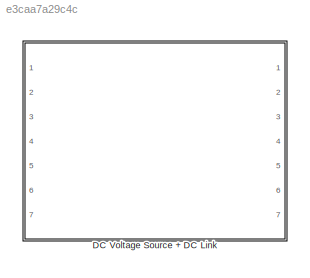
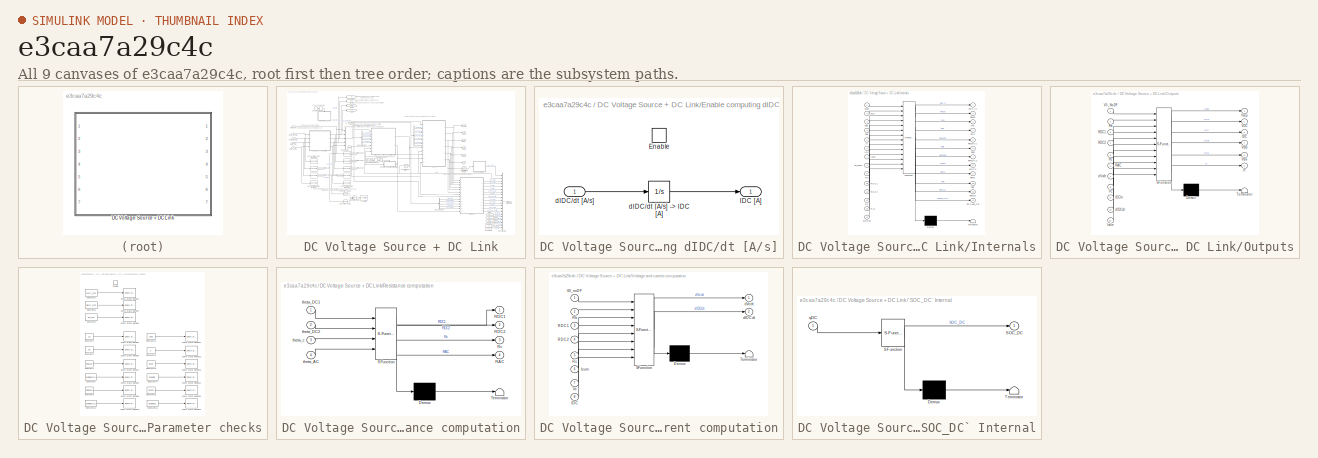
[diagram: thumbnail index - all 9 canvases of the model, root first then tree order]
MODEL slx_e3caa7a29c4c
KIND library
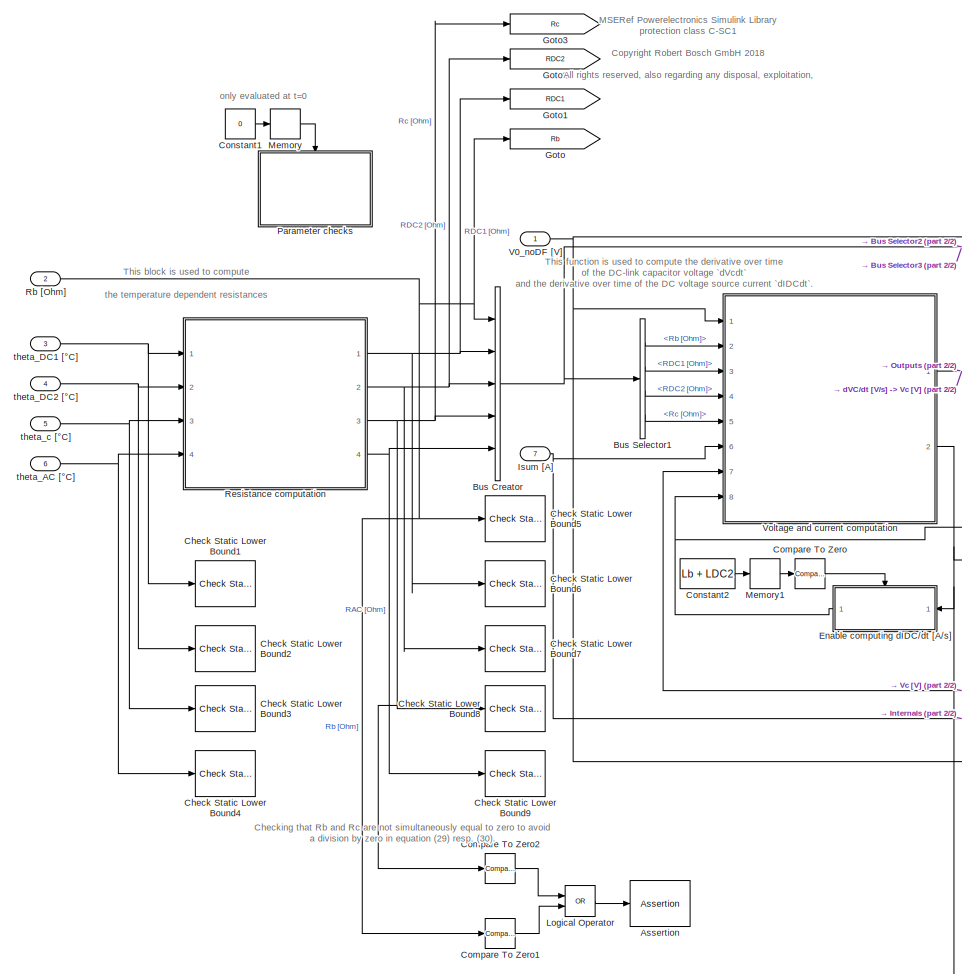
[diagram: DC Voltage Source + DC Link - part 1/2, left side, full height]
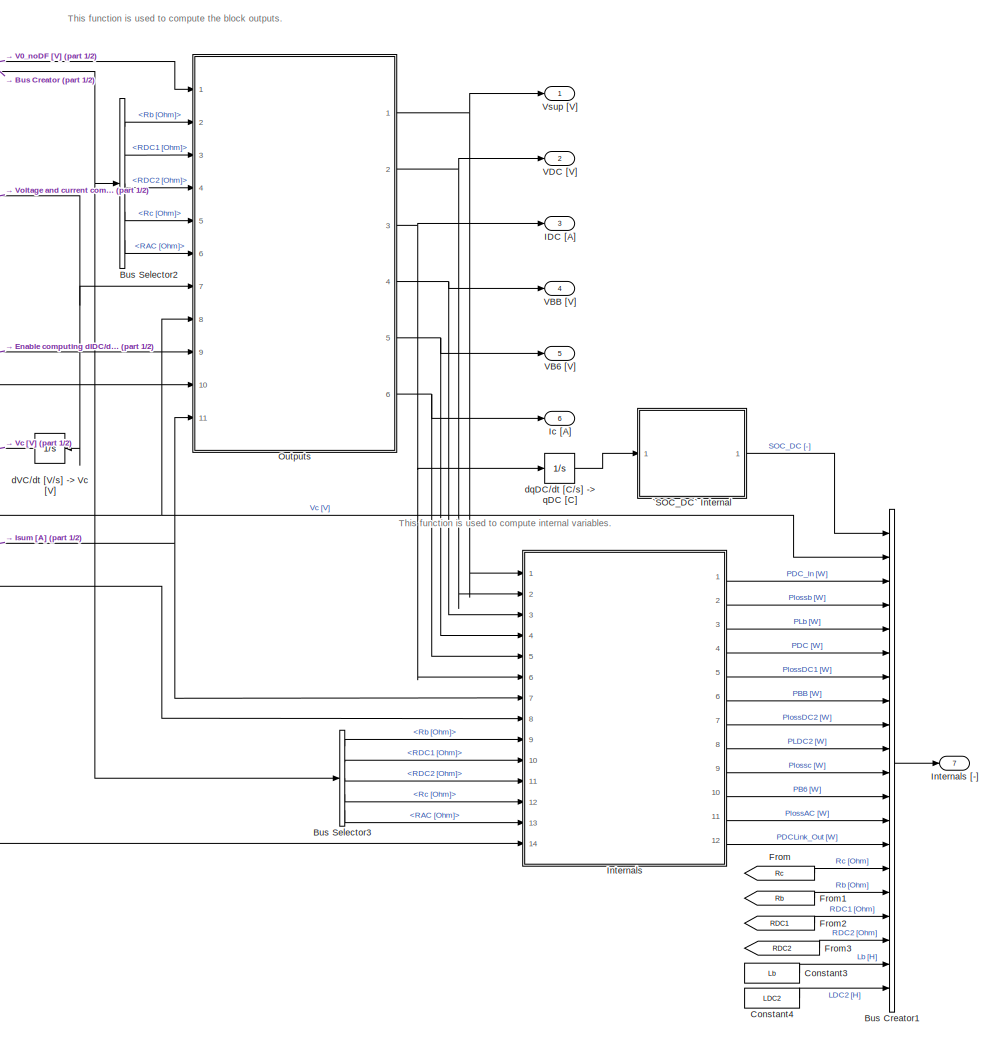
[diagram: DC Voltage Source + DC Link - part 2/2, right side, full height]
BLOCK [SubSystem] DC Voltage Source + DC Link
  AttributesFormatString = <%<Tag>>
  Ports = [7, 7]
  RequestExecContextInheritance = off
  Tag = PESRC01MSEREF
BLOCK [Assertion] DC Voltage Source + DC Link/Assertion
  AssertionFailFcn = errordlg('ERROR: `DC voltage source internal resistance` Rb and `DC-link resistance`Rc(theta_c) are simultaneously equal to zero.')
BLOCK [BusCreator] DC Voltage Source + DC Link/Bus Creator
  DisplayOption = bar
  Inputs = 5
  Ports = [5, 1]
BLOCK [BusCreator] DC Voltage Source + DC Link/Bus Creator1
  DisplayOption = bar
  Inputs = 20
  Ports = [20, 1]
BLOCK [BusSelector] DC Voltage Source + DC Link/Bus Selector1
  OutputSignals = Rb [Ohm],RDC1 [Ohm],RDC2 [Ohm],Rc [Ohm]
  Ports = [1, 4]
BLOCK [BusSelector] DC Voltage Source + DC Link/Bus Selector2
  OutputSignals = Rb [Ohm],RDC1 [Ohm],RDC2 [Ohm],Rc [Ohm],RAC [Ohm]
  Ports = [1, 5]
BLOCK [BusSelector] DC Voltage Source + DC Link/Bus Selector3
  OutputSignals = Rb [Ohm],RDC1 [Ohm],RDC2 [Ohm],Rc [Ohm],RAC [Ohm]
  Ports = [1, 5]
BLOCK [Reference] DC Voltage Source + DC Link/Check Static Lower Bound1  REF=simulink/Model
Verification/Check Static 
Lower Bound
  Description = -273.15 < u
  Ports = [1]
  SourceBlock = simulink/Model\nVerification/Check Static \nLower Bound
  SourceType = Checks_SMin
  callback = errordlg('Input `Wire harness temperature` theta_DC1 lower or equal to -273.15°C.')
  enabled = on
  export = off
  icon = graphic
  min = -273.15
  min_included = off
  stopWhenAssertionFail = on
BLOCK [Reference] DC Voltage Source + DC Link/Check Static Lower Bound2  REF=simulink/Model
Verification/Check Static 
Lower Bound
  Description = -273.15 < u
  Ports = [1]
  SourceBlock = simulink/Model\nVerification/Check Static \nLower Bound
  SourceType = Checks_SMin
  callback = errordlg('Input `Power net temperature` theta_DC2 lower or equal to -273.15°C.')
  enabled = on
  export = off
  icon = graphic
  min = -273.15
  min_included = off
  stopWhenAssertionFail = on
BLOCK [Reference] DC Voltage Source + DC Link/Check Static Lower Bound3  REF=simulink/Model
Verification/Check Static 
Lower Bound
  Description = -273.15 < u
  Ports = [1]
  SourceBlock = simulink/Model\nVerification/Check Static \nLower Bound
  SourceType = Checks_SMin
  callback = errordlg('Input `DC-link temperature` theta_c lower or equal to -273.15°C.')
  enabled = on
  export = off
  icon = graphic
  min = -273.15
  min_included = off
  stopWhenAssertionFail = on
BLOCK [Reference] DC Voltage Source + DC Link/Check Static Lower Bound4  REF=simulink/Model
Verification/Check Static 
Lower Bound
  Description = -273.15 < u
  Ports = [1]
  SourceBlock = simulink/Model\nVerification/Check Static \nLower Bound
  SourceType = Checks_SMin
  callback = errordlg('Input `Cable (between DC-link and drive) temperature` theta_AC lower or equal to -273.15°C.')
  enabled = on
  export = off
  icon = graphic
  min = -273.15
  min_included = off
  stopWhenAssertionFail = on
BLOCK [Reference] DC Voltage Source + DC Link/Check Static Lower Bound5  REF=simulink/Model
Verification/Check Static 
Lower Bound
  Description = 0 <= u
  Ports = [1]
  SourceBlock = simulink/Model\nVerification/Check Static \nLower Bound
  SourceType = Checks_SMin
  callback = errordlg('ERROR: `DC voltage source internal resistance` Rb is lower than zero.')
  enabled = on
  export = off
  icon = graphic
  min = 0
  min_included = on
  stopWhenAssertionFail = on
BLOCK [Reference] DC Voltage Source + DC Link/Check Static Lower Bound6  REF=simulink/Model
Verification/Check Static 
Lower Bound
  Description = 0 <= u
  Ports = [1]
  SourceBlock = simulink/Model\nVerification/Check Static \nLower Bound
  SourceType = Checks_SMin
  callback = errordlg('ERROR: `Wire harness resistance` RDC1(theta_DC1) is lower than zero.')
  enabled = on
  export = off
  icon = graphic
  min = 0
  min_included = on
  stopWhenAssertionFail = on
BLOCK [Reference] DC Voltage Source + DC Link/Check Static Lower Bound7  REF=simulink/Model
Verification/Check Static 
Lower Bound
  Description = 0 <= u
  Ports = [1]
  SourceBlock = simulink/Model\nVerification/Check Static \nLower Bound
  SourceType = Checks_SMin
  callback = errordlg('ERROR: `Power net resistance`RDC2(theta_DC2) is lower than zero.')
  enabled = on
  export = off
  icon = graphic
  min = 0
  min_included = on
  stopWhenAssertionFail = on
BLOCK [Reference] DC Voltage Source + DC Link/Check Static Lower Bound8  REF=simulink/Model
Verification/Check Static 
Lower Bound
  Description = 0 <= u
  Ports = [1]
  SourceBlock = simulink/Model\nVerification/Check Static \nLower Bound
  SourceType = Checks_SMin
  callback = errordlg('ERROR: `DC-link resistance`Rc(theta_c) is lower than zero.')
  enabled = on
  export = off
  icon = graphic
  min = 0
  min_included = on
  stopWhenAssertionFail = on
BLOCK [Reference] DC Voltage Source + DC Link/Check Static Lower Bound9  REF=simulink/Model
Verification/Check Static 
Lower Bound
  Description = 0 <= u
  Ports = [1]
  SourceBlock = simulink/Model\nVerification/Check Static \nLower Bound
  SourceType = Checks_SMin
  callback = errordlg('ERROR: `Cable resistance between DC-link and drive`RAC(theta_AC) is lower than zero.')
  enabled = on
  export = off
  icon = graphic
  min = 0
  min_included = on
  stopWhenAssertionFail = on
BLOCK [Reference] DC Voltage Source + DC Link/Compare To Zero  REF=simulink/Logic and Bit
Operations/Compare
To Zero
  OutDataTypeStr = boolean
  Ports = [1, 1]
  SourceBlock = simulink/Logic and Bit\nOperations/Compare\nTo Zero
  SourceType = Compare To Zero
  ZeroCross = on
  relop = >
BLOCK [Reference] DC Voltage Source + DC Link/Compare To Zero1  REF=simulink/Logic and Bit
Operations/Compare
To Zero
  OutDataTypeStr = boolean
  Ports = [1, 1]
  SourceBlock = simulink/Logic and Bit\nOperations/Compare\nTo Zero
  SourceType = Compare To Zero
  ZeroCross = on
  relop = ~=
BLOCK [Reference] DC Voltage Source + DC Link/Compare To Zero2  REF=simulink/Logic and Bit
Operations/Compare
To Zero
  OutDataTypeStr = boolean
  Ports = [1, 1]
  SourceBlock = simulink/Logic and Bit\nOperations/Compare\nTo Zero
  SourceType = Compare To Zero
  ZeroCross = on
  relop = ~=
BLOCK [Constant] DC Voltage Source + DC Link/Constant1
  Value = 0
BLOCK [Constant] DC Voltage Source + DC Link/Constant2
  Value = Lb + LDC2
BLOCK [Constant] DC Voltage Source + DC Link/Constant3
  Value = Lb
BLOCK [Constant] DC Voltage Source + DC Link/Constant4
  Value = LDC2
BLOCK [SubSystem] DC Voltage Source + DC Link/Enable computing dIDC//dt [A//s]
  Ports = [1, 1, 1]
  RequestExecContextInheritance = off
  TreatAsAtomicUnit = on
BLOCK [EnablePort] DC Voltage Source + DC Link/Enable computing dIDC//dt [A//s]/Enable
  Ports = []
BLOCK [Outport] DC Voltage Source + DC Link/Enable computing dIDC//dt [A//s]/IDC [A]
  IconDisplay = Port number
BLOCK [Inport] DC Voltage Source + DC Link/Enable computing dIDC//dt [A//s]/dIDC//dt [A//s]
  IconDisplay = Port number
BLOCK [Integrator] DC Voltage Source + DC Link/Enable computing dIDC//dt [A//s]/dIDC//dt [A//s] -> IDC [A]
  InitialCondition = IDC_init
  Ports = [1, 1]
BLOCK [From] DC Voltage Source + DC Link/From
  GotoTag = Rc
BLOCK [From] DC Voltage Source + DC Link/From1
  GotoTag = Rb
BLOCK [From] DC Voltage Source + DC Link/From2
  GotoTag = RDC1
BLOCK [From] DC Voltage Source + DC Link/From3
  GotoTag = RDC2
BLOCK [Goto] DC Voltage Source + DC Link/Goto
  GotoTag = Rb
BLOCK [Goto] DC Voltage Source + DC Link/Goto1
  GotoTag = RDC1
BLOCK [Goto] DC Voltage Source + DC Link/Goto2
  GotoTag = RDC2
BLOCK [Goto] DC Voltage Source + DC Link/Goto3
  GotoTag = Rc
BLOCK [Outport] DC Voltage Source + DC Link/IDC [A]
  IconDisplay = Port number
  Port = 3
BLOCK [Outport] DC Voltage Source + DC Link/Ic [A]
  IconDisplay = Port number
  Port = 6
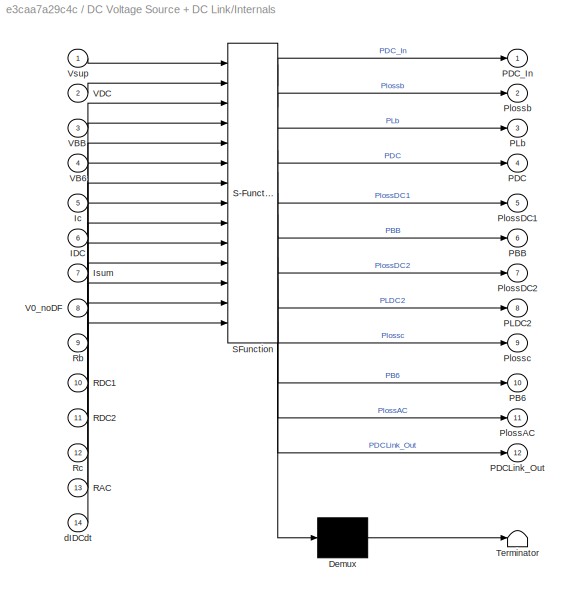
BLOCK [SubSystem] DC Voltage Source + DC Link/Internals
  ErrorFcn = Stateflow.Translate.translate
  PermitHierarchicalResolution = ExplicitOnly
  Ports = [14, 12]
  RequestExecContextInheritance = off
  SFBlockType = MATLAB Function
  TreatAsAtomicUnit = on
BLOCK [Outport] DC Voltage Source + DC Link/Internals [-]
  IconDisplay = Port number
  Port = 7
BLOCK [Demux] DC Voltage Source + DC Link/Internals/ Demux 
  Outputs = 1
  Ports = [1, 1]
BLOCK [S-Function] DC Voltage Source + DC Link/Internals/ SFunction 
  EnableBusSupport = off
  FunctionName = sf_sfun
  Parameters = LDC2,Lb
  PortCounts = [14 13]
  Ports = [14, 13]
  Tag = Stateflow S-Function PESRC01MSEREF 6
BLOCK [Terminator] DC Voltage Source + DC Link/Internals/ Terminator 
BLOCK [Inport] DC Voltage Source + DC Link/Internals/IDC
  IconDisplay = Port number
  Port = 6
BLOCK [Inport] DC Voltage Source + DC Link/Internals/Ic
  IconDisplay = Port number
  Port = 5
BLOCK [Inport] DC Voltage Source + DC Link/Internals/Isum
  IconDisplay = Port number
  Port = 7
BLOCK [Outport] DC Voltage Source + DC Link/Internals/PB6
  IconDisplay = Port number
  Port = 10
BLOCK [Outport] DC Voltage Source + DC Link/Internals/PBB
  IconDisplay = Port number
  Port = 6
BLOCK [Outport] DC Voltage Source + DC Link/Internals/PDC
  IconDisplay = Port number
  Port = 4
BLOCK [Outport] DC Voltage Source + DC Link/Internals/PDCLink_Out
  IconDisplay = Port number
  Port = 12
BLOCK [Outport] DC Voltage Source + DC Link/Internals/PDC_In
  IconDisplay = Port number
BLOCK [Outport] DC Voltage Source + DC Link/Internals/PLDC2
  IconDisplay = Port number
  Port = 8
BLOCK [Outport] DC Voltage Source + DC Link/Internals/PLb
  IconDisplay = Port number
  Port = 3
BLOCK [Outport] DC Voltage Source + DC Link/Internals/PlossAC
  IconDisplay = Port number
  Port = 11
BLOCK [Outport] DC Voltage Source + DC Link/Internals/PlossDC1
  IconDisplay = Port number
  Port = 5
BLOCK [Outport] DC Voltage Source + DC Link/Internals/PlossDC2
  IconDisplay = Port number
  Port = 7
BLOCK [Outport] DC Voltage Source + DC Link/Internals/Plossb
  IconDisplay = Port number
  Port = 2
BLOCK [Outport] DC Voltage Source + DC Link/Internals/Plossc
  IconDisplay = Port number
  Port = 9
BLOCK [Inport] DC Voltage Source + DC Link/Internals/RAC
  IconDisplay = Port number
  Port = 13
BLOCK [Inport] DC Voltage Source + DC Link/Internals/RDC1
  IconDisplay = Port number
  Port = 10
BLOCK [Inport] DC Voltage Source + DC Link/Internals/RDC2
  IconDisplay = Port number
  Port = 11
BLOCK [Inport] DC Voltage Source + DC Link/Internals/Rb
  IconDisplay = Port number
  Port = 9
BLOCK [Inport] DC Voltage Source + DC Link/Internals/Rc
  IconDisplay = Port number
  Port = 12
BLOCK [Inport] DC Voltage Source + DC Link/Internals/V0_noDF
  IconDisplay = Port number
  Port = 8
BLOCK [Inport] DC Voltage Source + DC Link/Internals/VB6
  IconDisplay = Port number
  Port = 4
BLOCK [Inport] DC Voltage Source + DC Link/Internals/VBB
  IconDisplay = Port number
  Port = 3
BLOCK [Inport] DC Voltage Source + DC Link/Internals/VDC
  IconDisplay = Port number
  Port = 2
BLOCK [Inport] DC Voltage Source + DC Link/Internals/Vsup
  IconDisplay = Port number
BLOCK [Inport] DC Voltage Source + DC Link/Internals/dIDCdt
  IconDisplay = Port number
  Port = 14
BLOCK [Inport] DC Voltage Source + DC Link/Isum [A]
  IconDisplay = Port number
  Port = 7
BLOCK [Logic] DC Voltage Source + DC Link/Logical Operator
  AllPortsSameDT = off
  Operator = OR
  OutDataTypeStr = boolean
  Ports = [2, 1]
BLOCK [Memory] DC Voltage Source + DC Link/Memory
  X0 = 1
BLOCK [Memory] DC Voltage Source + DC Link/Memory1
  X0 = 1
BLOCK [SubSystem] DC Voltage Source + DC Link/Outputs
  ErrorFcn = Stateflow.Translate.translate
  PermitHierarchicalResolution = ExplicitOnly
  Ports = [11, 6]
  RequestExecContextInheritance = off
  SFBlockType = MATLAB Function
  TreatAsAtomicUnit = on
BLOCK [Demux] DC Voltage Source + DC Link/Outputs/ Demux 
  Outputs = 1
  Ports = [1, 1]
BLOCK [S-Function] DC Voltage Source + DC Link/Outputs/ SFunction 
  EnableBusSupport = off
  FunctionName = sf_sfun
  Parameters = C,LDC2,Lb
  PortCounts = [11 7]
  Ports = [11, 7]
  Tag = Stateflow S-Function PESRC01MSEREF 8
BLOCK [Terminator] DC Voltage Source + DC Link/Outputs/ Terminator 
BLOCK [Outport] DC Voltage Source + DC Link/Outputs/IDC
  IconDisplay = Port number
  Port = 3
BLOCK [Inport] DC Voltage Source + DC Link/Outputs/IDCIn
  IconDisplay = Port number
  Port = 9
BLOCK [Outport] DC Voltage Source + DC Link/Outputs/Ic
  IconDisplay = Port number
  Port = 6
BLOCK [Inport] DC Voltage Source + DC Link/Outputs/Isum
  IconDisplay = Port number
  Port = 11
BLOCK [Inport] DC Voltage Source + DC Link/Outputs/RAC
  IconDisplay = Port number
  Port = 6
BLOCK [Inport] DC Voltage Source + DC Link/Outputs/RDC1
  IconDisplay = Port number
  Port = 3
BLOCK [Inport] DC Voltage Source + DC Link/Outputs/RDC2
  IconDisplay = Port number
  Port = 4
BLOCK [Inport] DC Voltage Source + DC Link/Outputs/Rb
  IconDisplay = Port number
  Port = 2
BLOCK [Inport] DC Voltage Source + DC Link/Outputs/Rc
  IconDisplay = Port number
  Port = 5
BLOCK [Inport] DC Voltage Source + DC Link/Outputs/V0_NoDF
  IconDisplay = Port number
BLOCK [Outport] DC Voltage Source + DC Link/Outputs/VB6
  IconDisplay = Port number
  Port = 5
BLOCK [Outport] DC Voltage Source + DC Link/Outputs/VBB
  IconDisplay = Port number
  Port = 4
BLOCK [Outport] DC Voltage Source + DC Link/Outputs/VDC
  IconDisplay = Port number
  Port = 2
BLOCK [Inport] DC Voltage Source + DC Link/Outputs/Vc
  IconDisplay = Port number
  Port = 8
BLOCK [Outport] DC Voltage Source + DC Link/Outputs/Vsup
  IconDisplay = Port number
BLOCK [Inport] DC Voltage Source + DC Link/Outputs/dIDCdt
  IconDisplay = Port number
  Port = 10
BLOCK [Inport] DC Voltage Source + DC Link/Outputs/dVcdt
  IconDisplay = Port number
  Port = 7
BLOCK [SubSystem] DC Voltage Source + DC Link/Parameter checks
  Ports = [0, 0, 1]
  RequestExecContextInheritance = off
BLOCK [Reference] DC Voltage Source + DC Link/Parameter checks/Check Static Range1  REF=simulink/Model
Verification/Check 
Static Range
  Description = -1e9 <= u < 1e9
  Ports = [1]
  SourceBlock = simulink/Model\nVerification/Check \nStatic Range
  SourceType = Checks_SRange
  callback = errordlg('Parameter `Initial DC voltage source current` IDC_init outside boundary [-1e9, 1e9] A.')
  enabled = on
  export = off
  icon = graphic
  max = 1e9
  max_included = off
  min = -1e9
  min_included = on
  stopWhenAssertionFail = on
BLOCK [Reference] DC Voltage Source + DC Link/Parameter checks/Check Static Range10  REF=simulink/Model
Verification/Check 
Static Range
  Description = 0 <= u <= 1
  Ports = [1]
  SourceBlock = simulink/Model\nVerification/Check \nStatic Range
  SourceType = Checks_SRange
  callback = errordlg('Parameter `Thermal coefficient of power net resistance` alphaDC1 outside boundary [0, 1] 1/K.')
  enabled = on
  export = off
  icon = graphic
  max = 1
  max_included = on
  min = 0
  min_included = on
  stopWhenAssertionFail = on
BLOCK [Reference] DC Voltage Source + DC Link/Parameter checks/Check Static Range11  REF=simulink/Model
Verification/Check 
Static Range
  Description = 0 <= u <= 10
  Ports = [1]
  SourceBlock = simulink/Model\nVerification/Check \nStatic Range
  SourceType = Checks_SRange
  callback = errordlg('Parameter `Power net inductance` LDC2 outside boundary [0, 10] H.')
  enabled = on
  export = off
  icon = graphic
  max = 10
  max_included = on
  min = 0
  min_included = on
  stopWhenAssertionFail = on
BLOCK [Reference] DC Voltage Source + DC Link/Parameter checks/Check Static Range12  REF=simulink/Model
Verification/Check 
Static Range
  Description = 0 <= u <= 1e3
  Ports = [1]
  SourceBlock = simulink/Model\nVerification/Check \nStatic Range
  SourceType = Checks_SRange
  callback = errordlg('Parameter `DC-link capacitor` C outside boundary [0, 1e3] F.')
  enabled = on
  export = off
  icon = graphic
  max = 1e3
  max_included = on
  min = 0
  min_included = on
  stopWhenAssertionFail = on
BLOCK [Reference] DC Voltage Source + DC Link/Parameter checks/Check Static Range13  REF=simulink/Model
Verification/Check 
Static Range
  Description = 0 <= u <= 1e9
  Ports = [1]
  SourceBlock = simulink/Model\nVerification/Check \nStatic Range
  SourceType = Checks_SRange
  callback = errordlg('Parameter `DC-link resistance  at 20°C` Rc20 outside boundary ]0, 1e9] Ohm.')
  enabled = on
  export = off
  icon = graphic
  max = 1e9
  max_included = on
  min = 0
  min_included = on
  stopWhenAssertionFail = on
BLOCK [Reference] DC Voltage Source + DC Link/Parameter checks/Check Static Range14  REF=simulink/Model
Verification/Check 
Static Range
  Description = 0 <= u <= 1
  Ports = [1]
  SourceBlock = simulink/Model\nVerification/Check \nStatic Range
  SourceType = Checks_SRange
  callback = errordlg('Parameter `Thermal coefficient of DC-link resistance` alphac outside boundary [0, 1] 1/K.')
  enabled = on
  export = off
  icon = graphic
  max = 1
  max_included = on
  min = 0
  min_included = on
  stopWhenAssertionFail = on
BLOCK [Reference] DC Voltage Source + DC Link/Parameter checks/Check Static Range15  REF=simulink/Model
Verification/Check 
Static Range
  Description = 0 <= u <= 1e9
  Ports = [1]
  SourceBlock = simulink/Model\nVerification/Check \nStatic Range
  SourceType = Checks_SRange
  callback = errordlg('Parameter `Cable resistance between DC-link and drive at 20°C` RAC20 outside boundary [0, 1e9] Ohm.')
  enabled = on
  export = off
  icon = graphic
  max = 1e9
  max_included = on
  min = 0
  min_included = on
  stopWhenAssertionFail = on
BLOCK [Reference] DC Voltage Source + DC Link/Parameter checks/Check Static Range16  REF=simulink/Model
Verification/Check 
Static Range
  Description = 0 <= u <= 1
  Ports = [1]
  SourceBlock = simulink/Model\nVerification/Check \nStatic Range
  SourceType = Checks_SRange
  callback = errordlg('Parameter `Thermal coefficient of cable resistance between DC-link and drive` alphaAC outside boundary [0, 1] 1/K.')
  enabled = on
  export = off
  icon = graphic
  max = 1
  max_included = on
  min = 0
  min_included = on
  stopWhenAssertionFail = on
BLOCK [Reference] DC Voltage Source + DC Link/Parameter checks/Check Static Range3  REF=simulink/Model
Verification/Check 
Static Range
  Description = 0 <= u <= 10
  Ports = [1]
  SourceBlock = simulink/Model\nVerification/Check \nStatic Range
  SourceType = Checks_SRange
  callback = errordlg('Parameter `DC voltage source internal inductance` Lb outside boundary [0, 10] H.')
  enabled = on
  export = off
  icon = graphic
  max = 10
  max_included = on
  min = 0
  min_included = on
  stopWhenAssertionFail = on
BLOCK [Reference] DC Voltage Source + DC Link/Parameter checks/Check Static Range4  REF=simulink/Model
Verification/Check 
Static Range
  Description = -1e9 <= u < 1e9
  Ports = [1]
  SourceBlock = simulink/Model\nVerification/Check \nStatic Range
  SourceType = Checks_SRange
  callback = errordlg('Parameter `Initial DC voltage source charge` qDC_init outside boundary [-1e9, 1e9] C.')
  enabled = on
  export = off
  icon = graphic
  max = 1e9
  max_included = off
  min = -1e9
  min_included = on
  stopWhenAssertionFail = on
BLOCK [Reference] DC Voltage Source + DC Link/Parameter checks/Check Static Range5  REF=simulink/Model
Verification/Check 
Static Range
  Description = -1e9 <= u < 1e9
  Ports = [1]
  SourceBlock = simulink/Model\nVerification/Check \nStatic Range
  SourceType = Checks_SRange
  callback = errordlg('Parameter `Initial DC-link capacitor voltage` Vc_init outside boundary [-1e9, 1e9] V.')
  enabled = on
  export = off
  icon = graphic
  max = 1e9
  max_included = off
  min = -1e9
  min_included = on
  stopWhenAssertionFail = on
BLOCK [Reference] DC Voltage Source + DC Link/Parameter checks/Check Static Range6  REF=simulink/Model
Verification/Check 
Static Range
  Description = 0 <= u <= 10
  Ports = [1]
  SourceBlock = simulink/Model\nVerification/Check \nStatic Range
  SourceType = Checks_SRange
  callback = errordlg('Parameter `DC voltage source capacity` Cb outside boundary [0, 10] Ah.')
  enabled = on
  export = off
  icon = graphic
  max = 10
  max_included = on
  min = 0
  min_included = on
  stopWhenAssertionFail = on
BLOCK [Reference] DC Voltage Source + DC Link/Parameter checks/Check Static Range7  REF=simulink/Model
Verification/Check 
Static Range
  Description = 0 <= u <= 1e9
  Ports = [1]
  SourceBlock = simulink/Model\nVerification/Check \nStatic Range
  SourceType = Checks_SRange
  callback = errordlg('Parameter `Wire harness resistance  at 20°C` RDC120 outside boundary [0, 1e9] Ohm.')
  enabled = on
  export = off
  icon = graphic
  max = 1e9
  max_included = on
  min = 0
  min_included = on
  stopWhenAssertionFail = on
BLOCK [Reference] DC Voltage Source + DC Link/Parameter checks/Check Static Range8  REF=simulink/Model
Verification/Check 
Static Range
  Description = 0 <= u <= 1
  Ports = [1]
  SourceBlock = simulink/Model\nVerification/Check \nStatic Range
  SourceType = Checks_SRange
  callback = errordlg('Parameter `Thermal coefficient of wire harness resistance` alphaDC1 outside boundary [0, 1] 1/K.')
  enabled = on
  export = off
  icon = graphic
  max = 1
  max_included = on
  min = 0
  min_included = on
  stopWhenAssertionFail = on
BLOCK [Reference] DC Voltage Source + DC Link/Parameter checks/Check Static Range9  REF=simulink/Model
Verification/Check 
Static Range
  Description = 0 <= u <= 1e9
  Ports = [1]
  SourceBlock = simulink/Model\nVerification/Check \nStatic Range
  SourceType = Checks_SRange
  callback = errordlg('Parameter `Power net resistance at 20°C` RDC220 outside boundary [0, 1e9] Ohm.')
  enabled = on
  export = off
  icon = graphic
  max = 1e9
  max_included = on
  min = 0
  min_included = on
  stopWhenAssertionFail = on
BLOCK [Constant] DC Voltage Source + DC Link/Parameter checks/Constant1
  Value = IDC_init
BLOCK [Constant] DC Voltage Source + DC Link/Parameter checks/Constant10
  Value = alphaDC2
BLOCK [Constant] DC Voltage Source + DC Link/Parameter checks/Constant11
  Value = LDC2
BLOCK [Constant] DC Voltage Source + DC Link/Parameter checks/Constant12
  Value = C
BLOCK [Constant] DC Voltage Source + DC Link/Parameter checks/Constant13
  Value = Rc20
BLOCK [Constant] DC Voltage Source + DC Link/Parameter checks/Constant14
  Value = alphac
BLOCK [Constant] DC Voltage Source + DC Link/Parameter checks/Constant15
  Value = RAC20
BLOCK [Constant] DC Voltage Source + DC Link/Parameter checks/Constant16
  Value = alphaAC
BLOCK [Constant] DC Voltage Source + DC Link/Parameter checks/Constant3
  Value = Lb
BLOCK [Constant] DC Voltage Source + DC Link/Parameter checks/Constant4
  Value = Cb
BLOCK [Constant] DC Voltage Source + DC Link/Parameter checks/Constant5
  Value = qDC_init
BLOCK [Constant] DC Voltage Source + DC Link/Parameter checks/Constant6
  Value = Vc_init
BLOCK [Constant] DC Voltage Source + DC Link/Parameter checks/Constant7
  Value = RDC120
BLOCK [Constant] DC Voltage Source + DC Link/Parameter checks/Constant8
  Value = alphaDC1
BLOCK [Constant] DC Voltage Source + DC Link/Parameter checks/Constant9
  Value = RDC220
BLOCK [EnablePort] DC Voltage Source + DC Link/Parameter checks/Enable
  Ports = []
  ZeroCross = off
BLOCK [Inport] DC Voltage Source + DC Link/Rb [Ohm]
  IconDisplay = Port number
  Port = 2
BLOCK [SubSystem] DC Voltage Source + DC Link/Resistance computation
  ErrorFcn = Stateflow.Translate.translate
  PermitHierarchicalResolution = ExplicitOnly
  Ports = [4, 4]
  RequestExecContextInheritance = off
  SFBlockType = MATLAB Function
  TreatAsAtomicUnit = on
BLOCK [Demux] DC Voltage Source + DC Link/Resistance computation/ Demux 
  Outputs = 1
  Ports = [1, 1]
BLOCK [S-Function] DC Voltage Source + DC Link/Resistance computation/ SFunction 
  EnableBusSupport = off
  FunctionName = sf_sfun
  Parameters = RAC20,RDC120,RDC220,Rc20,alphaAC,alphaDC1,alphaDC2,alphac
  PortCounts = [4 5]
  Ports = [4, 5]
  Tag = Stateflow S-Function PESRC01MSEREF 5
BLOCK [Terminator] DC Voltage Source + DC Link/Resistance computation/ Terminator 
BLOCK [Outport] DC Voltage Source + DC Link/Resistance computation/RAC
  IconDisplay = Port number
  Port = 4
BLOCK [Outport] DC Voltage Source + DC Link/Resistance computation/RDC1
  IconDisplay = Port number
BLOCK [Outport] DC Voltage Source + DC Link/Resistance computation/RDC2
  IconDisplay = Port number
  Port = 2
BLOCK [Outport] DC Voltage Source + DC Link/Resistance computation/Rc
  IconDisplay = Port number
  Port = 3
BLOCK [Inport] DC Voltage Source + DC Link/Resistance computation/theta_AC
  IconDisplay = Port number
  Port = 4
BLOCK [Inport] DC Voltage Source + DC Link/Resistance computation/theta_DC1
  IconDisplay = Port number
BLOCK [Inport] DC Voltage Source + DC Link/Resistance computation/theta_DC2
  IconDisplay = Port number
  Port = 2
BLOCK [Inport] DC Voltage Source + DC Link/Resistance computation/theta_c
  IconDisplay = Port number
  Port = 3
BLOCK [Inport] DC Voltage Source + DC Link/V0_noDF [V]
  IconDisplay = Port number
BLOCK [Outport] DC Voltage Source + DC Link/VB6 [V]
  IconDisplay = Port number
  Port = 5
BLOCK [Outport] DC Voltage Source + DC Link/VBB [V]
  IconDisplay = Port number
  Port = 4
BLOCK [Outport] DC Voltage Source + DC Link/VDC [V]
  IconDisplay = Port number
  Port = 2
BLOCK [SubSystem] DC Voltage Source + DC Link/Voltage and current computation
  ErrorFcn = Stateflow.Translate.translate
  PermitHierarchicalResolution = ExplicitOnly
  Ports = [8, 2]
  RequestExecContextInheritance = off
  SFBlockType = MATLAB Function
  TreatAsAtomicUnit = on
BLOCK [Demux] DC Voltage Source + DC Link/Voltage and current computation/ Demux 
  Outputs = 1
  Ports = [1, 1]
BLOCK [S-Function] DC Voltage Source + DC Link/Voltage and current computation/ SFunction 
  EnableBusSupport = off
  FunctionName = sf_sfun
  Parameters = C,LDC2,Lb
  PortCounts = [8 3]
  Ports = [8, 3]
  Tag = Stateflow S-Function PESRC01MSEREF 9
BLOCK [Terminator] DC Voltage Source + DC Link/Voltage and current computation/ Terminator 
BLOCK [Inport] DC Voltage Source + DC Link/Voltage and current computation/IDC
  IconDisplay = Port number
  Port = 8
BLOCK [Inport] DC Voltage Source + DC Link/Voltage and current computation/Isum
  IconDisplay = Port number
  Port = 6
BLOCK [Inport] DC Voltage Source + DC Link/Voltage and current computation/RDC1
  IconDisplay = Port number
  Port = 3
BLOCK [Inport] DC Voltage Source + DC Link/Voltage and current computation/RDC2
  IconDisplay = Port number
  Port = 4
BLOCK [Inport] DC Voltage Source + DC Link/Voltage and current computation/Rb
  IconDisplay = Port number
  Port = 2
BLOCK [Inport] DC Voltage Source + DC Link/Voltage and current computation/Rc
  IconDisplay = Port number
  Port = 5
BLOCK [Inport] DC Voltage Source + DC Link/Voltage and current computation/V0_noDF
  IconDisplay = Port number
BLOCK [Inport] DC Voltage Source + DC Link/Voltage and current computation/Vc
  IconDisplay = Port number
  Port = 7
BLOCK [Outport] DC Voltage Source + DC Link/Voltage and current computation/dIDCdt
  IconDisplay = Port number
  Port = 2
BLOCK [Outport] DC Voltage Source + DC Link/Voltage and current computation/dVcdt
  IconDisplay = Port number
BLOCK [Outport] DC Voltage Source + DC Link/Vsup [V]
  IconDisplay = Port number
BLOCK [SubSystem] DC Voltage Source + DC Link/`SOC_DC` Internal
  ErrorFcn = Stateflow.Translate.translate
  PermitHierarchicalResolution = ExplicitOnly
  Ports = [1, 1]
  RequestExecContextInheritance = off
  SFBlockType = MATLAB Function
  TreatAsAtomicUnit = on
BLOCK [Demux] DC Voltage Source + DC Link/`SOC_DC` Internal/ Demux 
  Outputs = 1
  Ports = [1, 1]
BLOCK [S-Function] DC Voltage Source + DC Link/`SOC_DC` Internal/ SFunction 
  EnableBusSupport = off
  FunctionName = sf_sfun
  Parameters = Cb
  PortCounts = [1 2]
  Ports = [1, 2]
  Tag = Stateflow S-Function PESRC01MSEREF 7
BLOCK [Terminator] DC Voltage Source + DC Link/`SOC_DC` Internal/ Terminator 
BLOCK [Outport] DC Voltage Source + DC Link/`SOC_DC` Internal/SOC_DC
  IconDisplay = Port number
BLOCK [Inport] DC Voltage Source + DC Link/`SOC_DC` Internal/qDC
  IconDisplay = Port number
BLOCK [Integrator] DC Voltage Source + DC Link/dVC//dt [V//s] -> Vc [V]
  InitialCondition = Vc_init
  Ports = [1, 1]
BLOCK [Integrator] DC Voltage Source + DC Link/dqDC//dt [C//s] -> qDC [C]
  InitialCondition = qDC_init
  Ports = [1, 1]
BLOCK [Inport] DC Voltage Source + DC Link/theta_AC [°C]
  IconDisplay = Port number
  Port = 6
BLOCK [Inport] DC Voltage Source + DC Link/theta_DC1 [°C]
  IconDisplay = Port number
  Port = 3
BLOCK [Inport] DC Voltage Source + DC Link/theta_DC2 [°C]
  IconDisplay = Port number
  Port = 4
BLOCK [Inport] DC Voltage Source + DC Link/theta_c [°C]
  IconDisplay = Port number
  Port = 5
ANNOTATION DC Voltage Source + DC Link: Checking that Rb and Rc are not simultaneously equal to zero to avoid a division by zero in equation (29) resp. (30).
ANNOTATION DC Voltage Source + DC Link: MSERef Powerelectronics Simulink Library protection class C-SC1 <copyright redacted>
ANNOTATION DC Voltage Source + DC Link: This block is used to compute the temperature dependent resistances
ANNOTATION DC Voltage Source + DC Link: This function is used to compute internal variables.
ANNOTATION DC Voltage Source + DC Link: This function is used to compute the block outputs.
ANNOTATION DC Voltage Source + DC Link: This function is used to compute the derivative over time of the DC-link capacitor voltage `dVcdt` and the derivative over time of the DC voltage source current `dIDCdt`.
ANNOTATION DC Voltage Source + DC Link: only evaluated at t=0
LINE DC Voltage Source + DC Link/Bus Creator1:1 -> DC Voltage Source + DC Link/Internals [-]:1
NET DC Voltage Source + DC Link/Bus Creator:1 -> DC Voltage Source + DC Link/Bus Selector1:1, DC Voltage Source + DC Link/Bus Selector2:1, DC Voltage Source + DC Link/Bus Selector3:1
LINE DC Voltage Source + DC Link/Bus Selector1:1 -> DC Voltage Source + DC Link/Voltage and current computation:2
LINE DC Voltage Source + DC Link/Bus Selector1:2 -> DC Voltage Source + DC Link/Voltage and current computation:3
LINE DC Voltage Source + DC Link/Bus Selector1:3 -> DC Voltage Source + DC Link/Voltage and current computation:4
LINE DC Voltage Source + DC Link/Bus Selector1:4 -> DC Voltage Source + DC Link/Voltage and current computation:5
LINE DC Voltage Source + DC Link/Bus Selector2:1 -> DC Voltage Source + DC Link/Outputs:2
LINE DC Voltage Source + DC Link/Bus Selector2:2 -> DC Voltage Source + DC Link/Outputs:3
LINE DC Voltage Source + DC Link/Bus Selector2:3 -> DC Voltage Source + DC Link/Outputs:4
LINE DC Voltage Source + DC Link/Bus Selector2:4 -> DC Voltage Source + DC Link/Outputs:5
LINE DC Voltage Source + DC Link/Bus Selector2:5 -> DC Voltage Source + DC Link/Outputs:6
LINE DC Voltage Source + DC Link/Bus Selector3:1 -> DC Voltage Source + DC Link/Internals:9
LINE DC Voltage Source + DC Link/Bus Selector3:2 -> DC Voltage Source + DC Link/Internals:10
LINE DC Voltage Source + DC Link/Bus Selector3:3 -> DC Voltage Source + DC Link/Internals:11
LINE DC Voltage Source + DC Link/Bus Selector3:4 -> DC Voltage Source + DC Link/Internals:12
LINE DC Voltage Source + DC Link/Bus Selector3:5 -> DC Voltage Source + DC Link/Internals:13
LINE DC Voltage Source + DC Link/Compare To Zero1:1 -> DC Voltage Source + DC Link/Logical Operator:2
LINE DC Voltage Source + DC Link/Compare To Zero2:1 -> DC Voltage Source + DC Link/Logical Operator:1
LINE DC Voltage Source + DC Link/Compare To Zero:1 -> DC Voltage Source + DC Link/Enable computing dIDC//dt [A//s]:enable
LINE DC Voltage Source + DC Link/Constant1:1 -> DC Voltage Source + DC Link/Memory:1
LINE DC Voltage Source + DC Link/Constant2:1 -> DC Voltage Source + DC Link/Memory1:1
LINE DC Voltage Source + DC Link/Constant3:1 -> DC Voltage Source + DC Link/Bus Creator1:19
LINE DC Voltage Source + DC Link/Constant4:1 -> DC Voltage Source + DC Link/Bus Creator1:20
LINE DC Voltage Source + DC Link/Enable computing dIDC//dt [A//s]/dIDC//dt [A//s] -> IDC [A]:1 -> DC Voltage Source + DC Link/Enable computing dIDC//dt [A//s]/IDC [A]:1
LINE DC Voltage Source + DC Link/Enable computing dIDC//dt [A//s]/dIDC//dt [A//s]:1 -> DC Voltage Source + DC Link/Enable computing dIDC//dt [A//s]/dIDC//dt [A//s] -> IDC [A]:1
NET DC Voltage Source + DC Link/Enable computing dIDC//dt [A//s]:1 -> DC Voltage Source + DC Link/Outputs:9, DC Voltage Source + DC Link/Voltage and current computation:8
LINE DC Voltage Source + DC Link/From1:1 -> DC Voltage Source + DC Link/Bus Creator1:16
LINE DC Voltage Source + DC Link/From2:1 -> DC Voltage Source + DC Link/Bus Creator1:17
LINE DC Voltage Source + DC Link/From3:1 -> DC Voltage Source + DC Link/Bus Creator1:18
LINE DC Voltage Source + DC Link/From:1 -> DC Voltage Source + DC Link/Bus Creator1:15
LINE DC Voltage Source + DC Link/Internals:1 -> DC Voltage Source + DC Link/Bus Creator1:3
LINE DC Voltage Source + DC Link/Internals:10 -> DC Voltage Source + DC Link/Bus Creator1:12
LINE DC Voltage Source + DC Link/Internals:11 -> DC Voltage Source + DC Link/Bus Creator1:13
LINE DC Voltage Source + DC Link/Internals:12 -> DC Voltage Source + DC Link/Bus Creator1:14
LINE DC Voltage Source + DC Link/Internals:2 -> DC Voltage Source + DC Link/Bus Creator1:4
LINE DC Voltage Source + DC Link/Internals:3 -> DC Voltage Source + DC Link/Bus Creator1:5
LINE DC Voltage Source + DC Link/Internals:4 -> DC Voltage Source + DC Link/Bus Creator1:6
LINE DC Voltage Source + DC Link/Internals:5 -> DC Voltage Source + DC Link/Bus Creator1:7
LINE DC Voltage Source + DC Link/Internals:6 -> DC Voltage Source + DC Link/Bus Creator1:8
LINE DC Voltage Source + DC Link/Internals:7 -> DC Voltage Source + DC Link/Bus Creator1:9
LINE DC Voltage Source + DC Link/Internals:8 -> DC Voltage Source + DC Link/Bus Creator1:10
LINE DC Voltage Source + DC Link/Internals:9 -> DC Voltage Source + DC Link/Bus Creator1:11
NET DC Voltage Source + DC Link/Isum [A]:1 -> DC Voltage Source + DC Link/Internals:7, DC Voltage Source + DC Link/Outputs:11, DC Voltage Source + DC Link/Voltage and current computation:6
LINE DC Voltage Source + DC Link/Logical Operator:1 -> DC Voltage Source + DC Link/Assertion:1
LINE DC Voltage Source + DC Link/Memory1:1 -> DC Voltage Source + DC Link/Compare To Zero:1
LINE DC Voltage Source + DC Link/Memory:1 -> DC Voltage Source + DC Link/Parameter checks:enable
NET DC Voltage Source + DC Link/Outputs:1 -> DC Voltage Source + DC Link/Internals:1, DC Voltage Source + DC Link/Vsup [V]:1
NET DC Voltage Source + DC Link/Outputs:2 -> DC Voltage Source + DC Link/Internals:2, DC Voltage Source + DC Link/VDC [V]:1
NET DC Voltage Source + DC Link/Outputs:3 -> DC Voltage Source + DC Link/IDC [A]:1, DC Voltage Source + DC Link/Internals:6, DC Voltage Source + DC Link/dqDC//dt [C//s] -> qDC [C]:1
NET DC Voltage Source + DC Link/Outputs:4 -> DC Voltage Source + DC Link/Internals:3, DC Voltage Source + DC Link/VBB [V]:1
NET DC Voltage Source + DC Link/Outputs:5 -> DC Voltage Source + DC Link/Internals:4, DC Voltage Source + DC Link/VB6 [V]:1
NET DC Voltage Source + DC Link/Outputs:6 -> DC Voltage Source + DC Link/Ic [A]:1, DC Voltage Source + DC Link/Internals:5
LINE DC Voltage Source + DC Link/Parameter checks/Constant10:1 -> DC Voltage Source + DC Link/Parameter checks/Check Static Range10:1
LINE DC Voltage Source + DC Link/Parameter checks/Constant11:1 -> DC Voltage Source + DC Link/Parameter checks/Check Static Range11:1
LINE DC Voltage Source + DC Link/Parameter checks/Constant12:1 -> DC Voltage Source + DC Link/Parameter checks/Check Static Range12:1
LINE DC Voltage Source + DC Link/Parameter checks/Constant13:1 -> DC Voltage Source + DC Link/Parameter checks/Check Static Range13:1
LINE DC Voltage Source + DC Link/Parameter checks/Constant14:1 -> DC Voltage Source + DC Link/Parameter checks/Check Static Range14:1
LINE DC Voltage Source + DC Link/Parameter checks/Constant15:1 -> DC Voltage Source + DC Link/Parameter checks/Check Static Range15:1
LINE DC Voltage Source + DC Link/Parameter checks/Constant16:1 -> DC Voltage Source + DC Link/Parameter checks/Check Static Range16:1
LINE DC Voltage Source + DC Link/Parameter checks/Constant1:1 -> DC Voltage Source + DC Link/Parameter checks/Check Static Range1:1
LINE DC Voltage Source + DC Link/Parameter checks/Constant3:1 -> DC Voltage Source + DC Link/Parameter checks/Check Static Range3:1
LINE DC Voltage Source + DC Link/Parameter checks/Constant4:1 -> DC Voltage Source + DC Link/Parameter checks/Check Static Range6:1
LINE DC Voltage Source + DC Link/Parameter checks/Constant5:1 -> DC Voltage Source + DC Link/Parameter checks/Check Static Range4:1
LINE DC Voltage Source + DC Link/Parameter checks/Constant6:1 -> DC Voltage Source + DC Link/Parameter checks/Check Static Range5:1
LINE DC Voltage Source + DC Link/Parameter checks/Constant7:1 -> DC Voltage Source + DC Link/Parameter checks/Check Static Range7:1
LINE DC Voltage Source + DC Link/Parameter checks/Constant8:1 -> DC Voltage Source + DC Link/Parameter checks/Check Static Range8:1
LINE DC Voltage Source + DC Link/Parameter checks/Constant9:1 -> DC Voltage Source + DC Link/Parameter checks/Check Static Range9:1
NET DC Voltage Source + DC Link/Rb [Ohm]:1 -> DC Voltage Source + DC Link/Bus Creator:1, DC Voltage Source + DC Link/Check Static Lower Bound5:1, DC Voltage Source + DC Link/Compare To Zero1:1, DC Voltage Source + DC Link/Goto:1
NET DC Voltage Source + DC Link/Resistance computation:1 -> DC Voltage Source + DC Link/Bus Creator:2, DC Voltage Source + DC Link/Check Static Lower Bound6:1, DC Voltage Source + DC Link/Goto1:1
NET DC Voltage Source + DC Link/Resistance computation:2 -> DC Voltage Source + DC Link/Bus Creator:3, DC Voltage Source + DC Link/Check Static Lower Bound7:1, DC Voltage Source + DC Link/Goto2:1
NET DC Voltage Source + DC Link/Resistance computation:3 -> DC Voltage Source + DC Link/Bus Creator:4, DC Voltage Source + DC Link/Check Static Lower Bound8:1, DC Voltage Source + DC Link/Compare To Zero2:1, DC Voltage Source + DC Link/Goto3:1
NET DC Voltage Source + DC Link/Resistance computation:4 -> DC Voltage Source + DC Link/Bus Creator:5, DC Voltage Source + DC Link/Check Static Lower Bound9:1
NET DC Voltage Source + DC Link/V0_noDF [V]:1 -> DC Voltage Source + DC Link/Internals:8, DC Voltage Source + DC Link/Outputs:1, DC Voltage Source + DC Link/Voltage and current computation:1
NET DC Voltage Source + DC Link/Voltage and current computation:1 -> DC Voltage Source + DC Link/Outputs:7, DC Voltage Source + DC Link/dVC//dt [V//s] -> Vc [V]:1
NET DC Voltage Source + DC Link/Voltage and current computation:2 -> DC Voltage Source + DC Link/Enable computing dIDC//dt [A//s]:1, DC Voltage Source + DC Link/Internals:14, DC Voltage Source + DC Link/Outputs:10
LINE DC Voltage Source + DC Link/`SOC_DC` Internal:1 -> DC Voltage Source + DC Link/Bus Creator1:1
NET DC Voltage Source + DC Link/dVC//dt [V//s] -> Vc [V]:1 -> DC Voltage Source + DC Link/Bus Creator1:2, DC Voltage Source + DC Link/Outputs:8, DC Voltage Source + DC Link/Voltage and current computation:7
LINE DC Voltage Source + DC Link/dqDC//dt [C//s] -> qDC [C]:1 -> DC Voltage Source + DC Link/`SOC_DC` Internal:1
NET DC Voltage Source + DC Link/theta_AC [°C]:1 -> DC Voltage Source + DC Link/Check Static Lower Bound4:1, DC Voltage Source + DC Link/Resistance computation:4
NET DC Voltage Source + DC Link/theta_DC1 [°C]:1 -> DC Voltage Source + DC Link/Check Static Lower Bound1:1, DC Voltage Source + DC Link/Resistance computation:1
NET DC Voltage Source + DC Link/theta_DC2 [°C]:1 -> DC Voltage Source + DC Link/Check Static Lower Bound2:1, DC Voltage Source + DC Link/Resistance computation:2
NET DC Voltage Source + DC Link/theta_c [°C]:1 -> DC Voltage Source + DC Link/Check Static Lower Bound3:1, DC Voltage Source + DC Link/Resistance computation:3
note: NET lines group one-source signal fan-out (src -> all destinations, sorted); 1:1 wires keep LINE
CHART DC Voltage Source + DC Link/Resistance computation states=1 transitions=1
  STATE_LABEL 'eML_blk_kernel()'
  STATE_LABEL 'SCRIPT:\nfunction [RDC1, RDC2, Rc, RAC] = fcn_Resistance(theta_DC1, theta_DC2, theta_c, theta_AC, RDC120, alphaDC1, RDC220, alphaDC2, Rc20, alphac, RAC20, alphaAC)\n% This function is used to compute the temperature dependent resistances\n%\n%  MSERef Powerelectronics Simulink Library \n%  protection class C-SC1\n%\n%  <copyright redacted>\n%\n%  All rights reserved, also regarding any disposal...<+448ch>'
CHART DC Voltage Source + DC Link/Internals states=1 transitions=1
  STATE_LABEL 'eML_blk_kernel()'
  STATE_LABEL 'SCRIPT:\nfunction [PDC_In, Plossb, PLb, PDC, PlossDC1, PBB, PlossDC2, PLDC2, Plossc, PB6, PlossAC, PDCLink_Out] = fcn_Internals(Vsup, VDC, VBB, VB6, Ic, IDC, Isum, V0_noDF, Rb, Lb, RDC1, RDC2, LDC2, Rc, RAC, dIDCdt)\n% This function is used to compute internal variables\n% `PDC_In`, `Plossb`, `PLb`, `PDC`, `PlossDC1`, `PBB`, `PlossDC2`, \n% `PLDC2`, `Plossc`, `PB6`, `PlossAC`, `PDCLink_Out`.\n%\n%  MSER...<+910ch>'
CHART DC Voltage Source + DC Link/`SOC_DC` Internal states=1 transitions=1
  STATE_LABEL 'eML_blk_kernel()'
  STATE_LABEL 'SCRIPT:\nfunction SOC_DC = SOC_DC_Internal(qDC, Cb)\n% This function is used to compute internal variable `SOC_DC`\n%\n%  MSERef Powerelectronics Simulink Library \n%  protection class C-SC1\n%\n%  <copyright redacted>\n%\n%  All rights reserved, also regarding any disposal, exploitation,\n%  reproduction, editing, distribution, as well as in the event of\n%  applications for industrial property ...<+307ch>'
CHART DC Voltage Source + DC Link/Outputs states=1 transitions=1
  STATE_LABEL 'eML_blk_kernel()'
  STATE_LABEL 'SCRIPT:\nfunction [Vsup, VDC, IDC, VBB, VB6, Ic] = fcn_Outputs(V0_NoDF, Rb, Lb, RDC1, RDC2, Rc, RAC, dVcdt, Vc, IDCIn, dIDCdt, LDC2, C, Isum)\n% This function is used to compute the block outputs `Vsup`, `VDC`, `IDC`, `VBB`, `VB6` and `Ic`.\n%\n%  MSERef Powerelectronics Simulink Library \n%  protection class C-SC1\n%\n%  <copyright redacted>\n%\n%  All rights reserved, also regarding any dispo...<+1747ch>'
CHART DC Voltage Source + DC Link/Voltage and current computation states=1 transitions=1
  STATE_LABEL 'eML_blk_kernel()'
  STATE_LABEL 'SCRIPT:\nfunction [dVcdt, dIDCdt] = fcn_Voltage(V0_noDF, Rb, Lb, ...\n                        RDC1, RDC2, Rc, LDC2, C, Isum, Vc, IDC)\n% This function is used to compute the derivative over time \n% of the DC-link capacitor voltage `dVcdt`\n% and the derivative over time of the DC voltage source current `dIDCdt`.\n%\n%  MSERef Powerelectronics Simulink Library \n%  protection class C-SC1\n%\n%  <copyright redacted>
